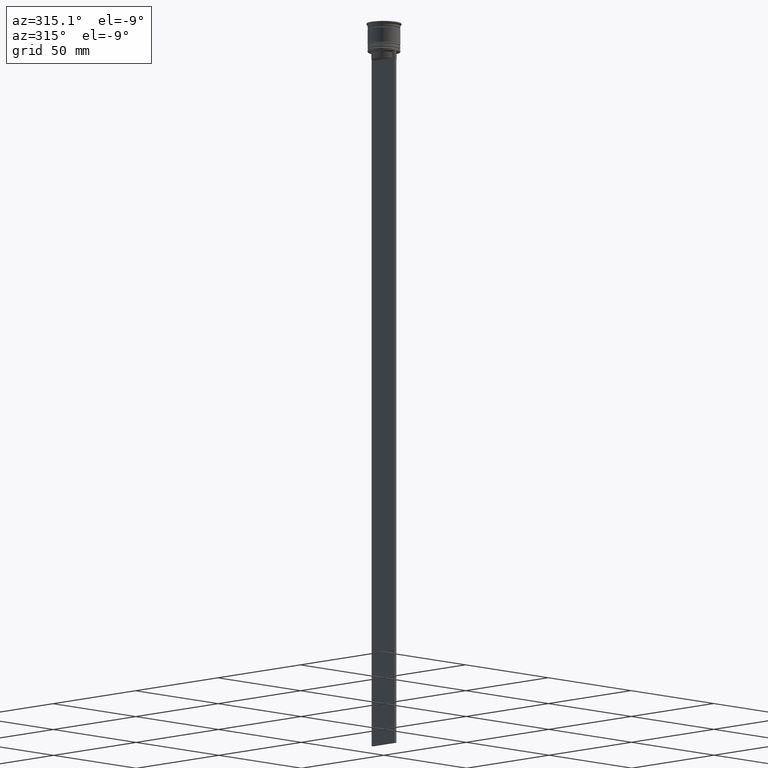
[diagram: clean part render]
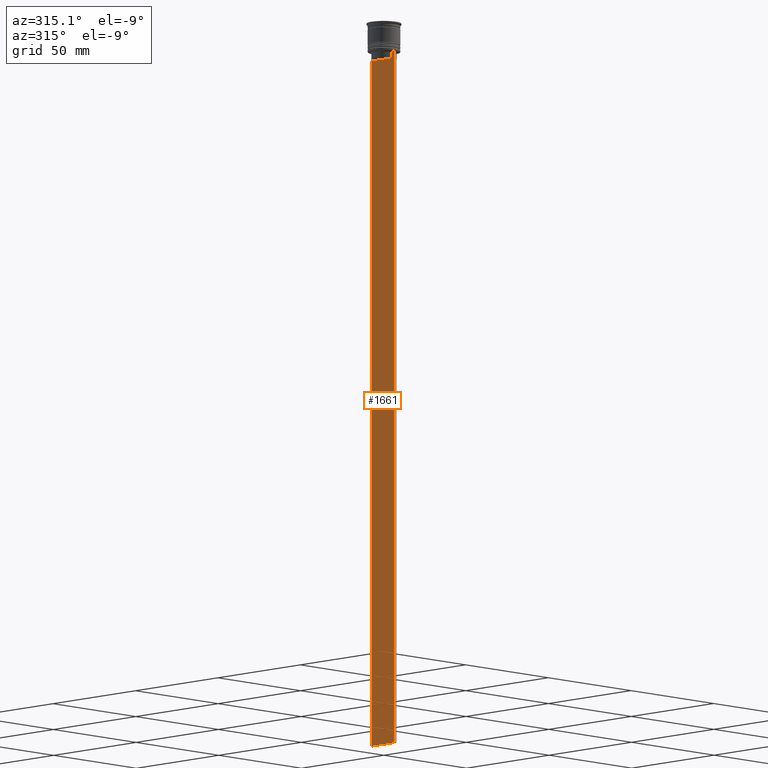
[diagram: same view with one face highlighted and labeled with its STEP entity id]
A machine part, auxiliary view. The second image highlights one B-rep face of the part: STEP entity #1661.
In plain terms, the highlighted planar face has unit normal (-1, 0, 0).
Its self-contained STEP definition (entity closure, byte-faithful):
#14 = VECTOR ( 'NONE', #2293, 1000.000000000000000 ) ;
#107 = DIRECTION ( 'NONE',  ( 0.000000000000000000, 0.000000000000000000, -1.000000000000000000 ) ) ;
#113 = EDGE_CURVE ( 'NONE', #2037, #1531, #1368, .T. ) ;
#118 = ORIENTED_EDGE ( 'NONE', *, *, #1041, .F. ) ;
#139 = VECTOR ( 'NONE', #1734, 1000.000000000000000 ) ;
#140 = CARTESIAN_POINT ( 'NONE',  ( -0.5000000000000000000, 6.881860213634102053, -12.50000000000000000 ) ) ;
#153 = FACE_OUTER_BOUND ( 'NONE', #198, .T. ) ;
#175 = EDGE_CURVE ( 'NONE', #1154, #1843, #1571, .T. ) ;
#198 = EDGE_LOOP ( 'NONE', ( #1588, #1505, #1131, #512, #118, #2023, #2057, #1406, #353, #477, #2161, #1274 ) ) ;
#202 = DIRECTION ( 'NONE',  ( -1.000000000000000000, 0.000000000000000000, 0.000000000000000000 ) ) ;
#211 = VECTOR ( 'NONE', #738, 1000.000000000000000 ) ;
#227 = B_SPLINE_CURVE_WITH_KNOTS ( 'NONE', 3,
 ( #834, #259, #244, #2368 ),
 .UNSPECIFIED., .F., .F.,
 ( 4, 4 ),
 ( 0.01003009312103698807, 0.01073859663834952557 ),
 .UNSPECIFIED. ) ;
#230 = CARTESIAN_POINT ( 'NONE',  ( -0.5000000000000000000, -5.376802023508029826, -13.00000000000000178 ) ) ;
#244 = CARTESIAN_POINT ( 'NONE',  ( -0.5000000000000000000, 5.544156989057553275, -12.83336397825725861 ) ) ;
#259 = CARTESIAN_POINT ( 'NONE',  ( -0.5000000000000000000, 5.711478846560141598, -12.66669470477064685 ) ) ;
#261 = EDGE_CURVE ( 'NONE', #1894, #789, #1236, .T. ) ;
#323 = B_SPLINE_CURVE_WITH_KNOTS ( 'NONE', 3,
 ( #230, #404, #2307, #1946 ),
 .UNSPECIFIED., .F., .F.,
 ( 4, 4 ),
 ( 0.02539176325380714666, 0.02610162431828674801 ),
 .UNSPECIFIED. ) ;
#328 = VERTEX_POINT ( 'NONE', #140 ) ;
#347 = CARTESIAN_POINT ( 'NONE',  ( -0.5000000000000000000, 5.376802023508029826, -15.50000000000000000 ) ) ;
#353 = ORIENTED_EDGE ( 'NONE', *, *, #1294, .F. ) ;
#391 = VERTEX_POINT ( 'NONE', #2289 ) ;
#404 = CARTESIAN_POINT ( 'NONE',  ( -0.5000000000000000000, -5.544156999454441959, -12.83336396790503642 ) ) ;
#409 = VECTOR ( 'NONE', #829, 1000.000000000000000 ) ;
#416 = CARTESIAN_POINT ( 'NONE',  ( -0.5000000000000000000, -6.999999999999997335, -12.50000000000000000 ) ) ;
#472 = DIRECTION ( 'NONE',  ( 0.000000000000000000, -1.000000000000000000, 0.000000000000000000 ) ) ;
#477 = ORIENTED_EDGE ( 'NONE', *, *, #113, .F. ) ;
#485 = EDGE_CURVE ( 'NONE', #1190, #1894, #1914, .T. ) ;
#512 = ORIENTED_EDGE ( 'NONE', *, *, #175, .T. ) ;
#525 = EDGE_CURVE ( 'NONE', #1703, #1190, #1179, .T. ) ;
#583 = VECTOR ( 'NONE', #472, 1000.000000000000000 ) ;
#680 = EDGE_CURVE ( 'NONE', #328, #782, #1807, .T. ) ;
#704 = CARTESIAN_POINT ( 'NONE',  ( -0.5000000000000000000, 7.000000000000002665, -12.50000000000000000 ) ) ;
#738 = DIRECTION ( 'NONE',  ( 0.000000000000000000, -1.000000000000000000, 0.000000000000000000 ) ) ;
#766 = CARTESIAN_POINT ( 'NONE',  ( -0.5000000000000000000, -6.999999999999997335, -12.50000000000000000 ) ) ;
#771 = CARTESIAN_POINT ( 'NONE',  ( -0.5000000000000000000, 5.376802023508029826, 0.000000000000000000 ) ) ;
#782 = VERTEX_POINT ( 'NONE', #2439 ) ;
#789 = VERTEX_POINT ( 'NONE', #874 ) ;
#809 = LINE ( 'NONE', #766, #2175 ) ;
#829 = DIRECTION ( 'NONE',  ( -0.000000000000000000, -0.000000000000000000, 1.000000000000000000 ) ) ;
#834 = CARTESIAN_POINT ( 'NONE',  ( -0.5000000000000000000, 5.878775382679629402, -12.50000000000000000 ) ) ;
#874 = CARTESIAN_POINT ( 'NONE',  ( -0.5000000000000000000, -6.999999999999997335, -312.5000000000000000 ) ) ;
#885 = EDGE_CURVE ( 'NONE', #1154, #328, #809, .T. ) ;
#928 = PLANE ( 'NONE',  #1611 ) ;
#942 = EDGE_CURVE ( 'NONE', #782, #391, #227, .T. ) ;
#986 = CARTESIAN_POINT ( 'NONE',  ( -0.5000000000000000000, 5.400000000000003908, -15.50000000000000000 ) ) ;
#995 = CARTESIAN_POINT ( 'NONE',  ( -0.5000000000000000000, 7.000000000000002665, -312.5000000000000000 ) ) ;
#1041 = EDGE_CURVE ( 'NONE', #789, #1843, #1999, .T. ) ;
#1049 = VECTOR ( 'NONE', #1961, 1000.000000000000000 ) ;
#1064 = CARTESIAN_POINT ( 'NONE',  ( -0.5000000000000000000, -6.999999999999997335, -12.50000000000000000 ) ) ;
#1131 = ORIENTED_EDGE ( 'NONE', *, *, #885, .F. ) ;
#1154 = VERTEX_POINT ( 'NONE', #704 ) ;
#1179 = LINE ( 'NONE', #1201, #2461 ) ;
#1190 = VERTEX_POINT ( 'NONE', #1296 ) ;
#1195 = DIRECTION ( 'NONE',  ( 0.000000000000000000, 1.000000000000000000, 0.000000000000000000 ) ) ;
#1201 = CARTESIAN_POINT ( 'NONE',  ( -0.5000000000000000000, -6.999999999999997335, -12.50000000000000000 ) ) ;
#1236 = LINE ( 'NONE', #2251, #1964 ) ;
#1274 = ORIENTED_EDGE ( 'NONE', *, *, #1302, .F. ) ;
#1294 = EDGE_CURVE ( 'NONE', #1531, #1703, #323, .T. ) ;
#1296 = CARTESIAN_POINT ( 'NONE',  ( -0.5000000000000000000, -6.881860213634102053, -12.50000000000000000 ) ) ;
#1302 = EDGE_CURVE ( 'NONE', #391, #1987, #1533, .T. ) ;
#1354 = CARTESIAN_POINT ( 'NONE',  ( -0.5000000000000000000, 7.000000000000002665, 1.535668847618198329 ) ) ;
#1368 = LINE ( 'NONE', #1796, #409 ) ;
#1406 = ORIENTED_EDGE ( 'NONE', *, *, #525, .F. ) ;
#1495 = DIRECTION ( 'NONE',  ( 0.000000000000000000, 0.000000000000000000, 1.000000000000000000 ) ) ;
#1505 = ORIENTED_EDGE ( 'NONE', *, *, #680, .F. ) ;
#1531 = VERTEX_POINT ( 'NONE', #2266 ) ;
#1533 = LINE ( 'NONE', #771, #14 ) ;
#1571 = LINE ( 'NONE', #1354, #1049 ) ;
#1588 = ORIENTED_EDGE ( 'NONE', *, *, #942, .F. ) ;
#1611 = AXIS2_PLACEMENT_3D ( 'NONE', #1670, #202, #1495 ) ;
#1661 = ADVANCED_FACE ( 'NONE', ( #153 ), #928, .T. ) ;
#1670 = CARTESIAN_POINT ( 'NONE',  ( -0.5000000000000000000, -6.999999999999997335, 1.535668847618198329 ) ) ;
#1703 = VERTEX_POINT ( 'NONE', #2281 ) ;
#1733 = DIRECTION ( 'NONE',  ( 0.000000000000000000, -1.000000000000000000, 0.000000000000000000 ) ) ;
#1734 = DIRECTION ( 'NONE',  ( 0.000000000000000000, -1.000000000000000000, 0.000000000000000000 ) ) ;
#1770 = EDGE_CURVE ( 'NONE', #1987, #2037, #1925, .T. ) ;
#1796 = CARTESIAN_POINT ( 'NONE',  ( -0.5000000000000000000, -5.376802023508029826, 0.000000000000000000 ) ) ;
#1807 = LINE ( 'NONE', #1064, #583 ) ;
#1843 = VERTEX_POINT ( 'NONE', #995 ) ;
#1894 = VERTEX_POINT ( 'NONE', #416 ) ;
#1914 = LINE ( 'NONE', #1924, #211 ) ;
#1924 = CARTESIAN_POINT ( 'NONE',  ( -0.5000000000000000000, -6.999999999999997335, -12.50000000000000000 ) ) ;
#1925 = LINE ( 'NONE', #986, #139 ) ;
#1936 = DIRECTION ( 'NONE',  ( 0.000000000000000000, -1.000000000000000000, 0.000000000000000000 ) ) ;
#1946 = CARTESIAN_POINT ( 'NONE',  ( -0.5000000000000000000, -5.878775382679629402, -12.50000000000000000 ) ) ;
#1961 = DIRECTION ( 'NONE',  ( 0.000000000000000000, 0.000000000000000000, -1.000000000000000000 ) ) ;
#1964 = VECTOR ( 'NONE', #107, 1000.000000000000000 ) ;
#1966 = CARTESIAN_POINT ( 'NONE',  ( -0.5000000000000000000, -6.999999999999997335, -312.5000000000000000 ) ) ;
#1987 = VERTEX_POINT ( 'NONE', #347 ) ;
#1999 = LINE ( 'NONE', #1966, #2220 ) ;
#2023 = ORIENTED_EDGE ( 'NONE', *, *, #261, .F. ) ;
#2037 = VERTEX_POINT ( 'NONE', #2440 ) ;
#2057 = ORIENTED_EDGE ( 'NONE', *, *, #485, .F. ) ;
#2161 = ORIENTED_EDGE ( 'NONE', *, *, #1770, .F. ) ;
#2175 = VECTOR ( 'NONE', #1936, 1000.000000000000000 ) ;
#2220 = VECTOR ( 'NONE', #1195, 1000.000000000000000 ) ;
#2251 = CARTESIAN_POINT ( 'NONE',  ( -0.5000000000000000000, -6.999999999999997335, 1.535668847618198329 ) ) ;
#2266 = CARTESIAN_POINT ( 'NONE',  ( -0.5000000000000000000, -5.376802023508029826, -13.00000000000000178 ) ) ;
#2281 = CARTESIAN_POINT ( 'NONE',  ( -0.5000000000000000000, -5.878775382679629402, -12.50000000000000000 ) ) ;
#2289 = CARTESIAN_POINT ( 'NONE',  ( -0.5000000000000000000, 5.376802023508029826, -13.00000000000000178 ) ) ;
#2293 = DIRECTION ( 'NONE',  ( 0.000000000000000000, 0.000000000000000000, -1.000000000000000000 ) ) ;
#2307 = CARTESIAN_POINT ( 'NONE',  ( -0.5000000000000000000, -5.711478856069293286, -12.66669469529570335 ) ) ;
#2368 = CARTESIAN_POINT ( 'NONE',  ( -0.5000000000000000000, 5.376802023508029826, -13.00000000000000178 ) ) ;
#2439 = CARTESIAN_POINT ( 'NONE',  ( -0.5000000000000000000, 5.878775382679629402, -12.50000000000000000 ) ) ;
#2440 = CARTESIAN_POINT ( 'NONE',  ( -0.5000000000000000000, -5.376802023508029826, -15.50000000000000000 ) ) ;
#2461 = VECTOR ( 'NONE', #1733, 1000.000000000000000 ) ;